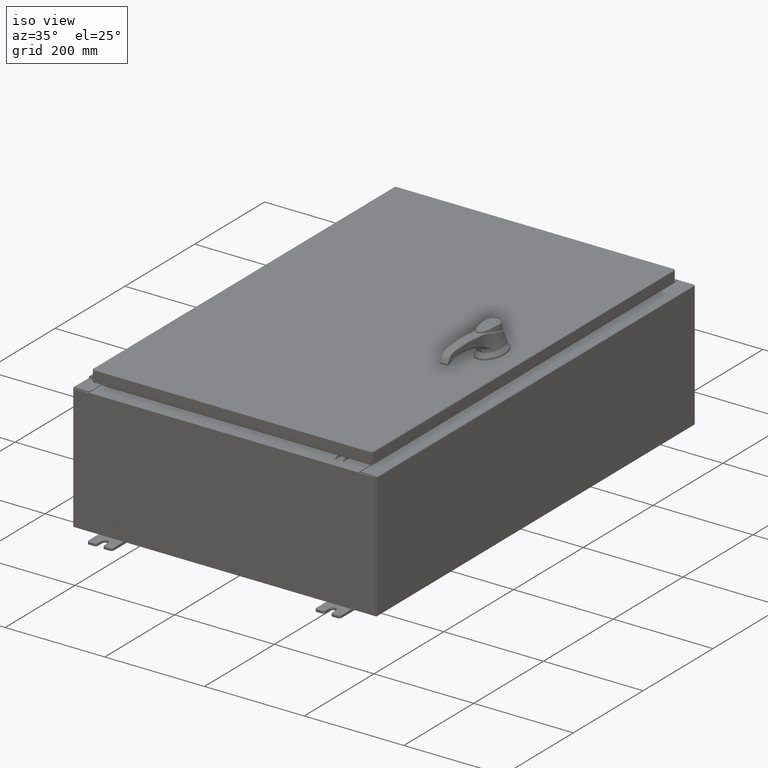
[diagram: clean part render]
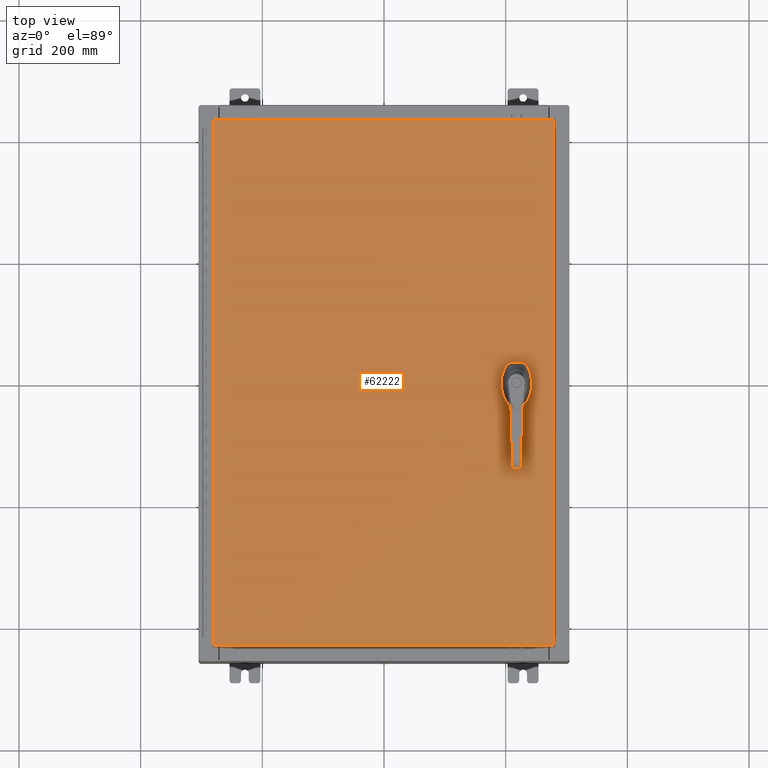
[diagram: tour spotlight — one face highlighted and labeled with its STEP entity id]
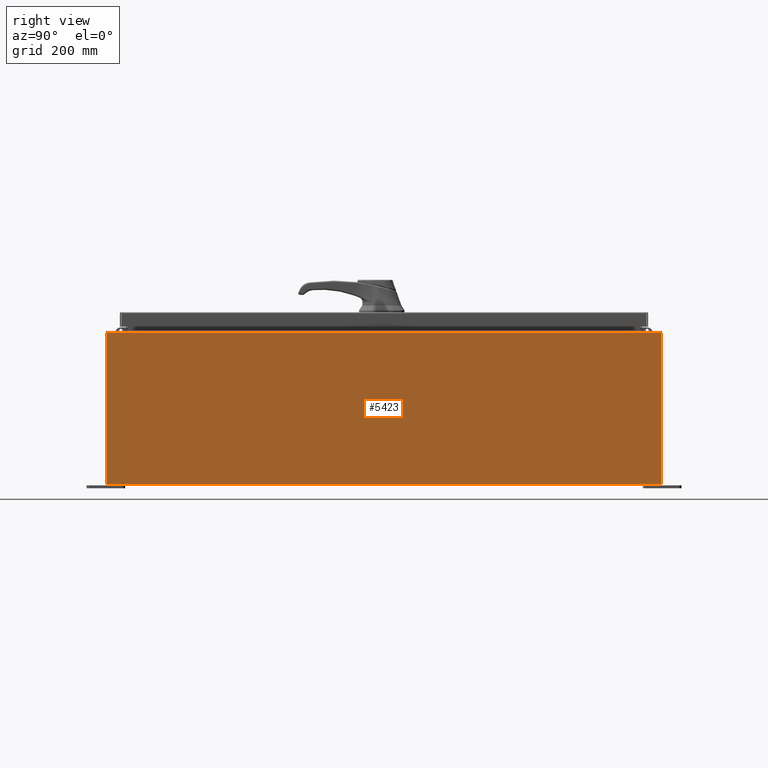
[diagram: tour spotlight — one face highlighted and labeled with its STEP entity id]
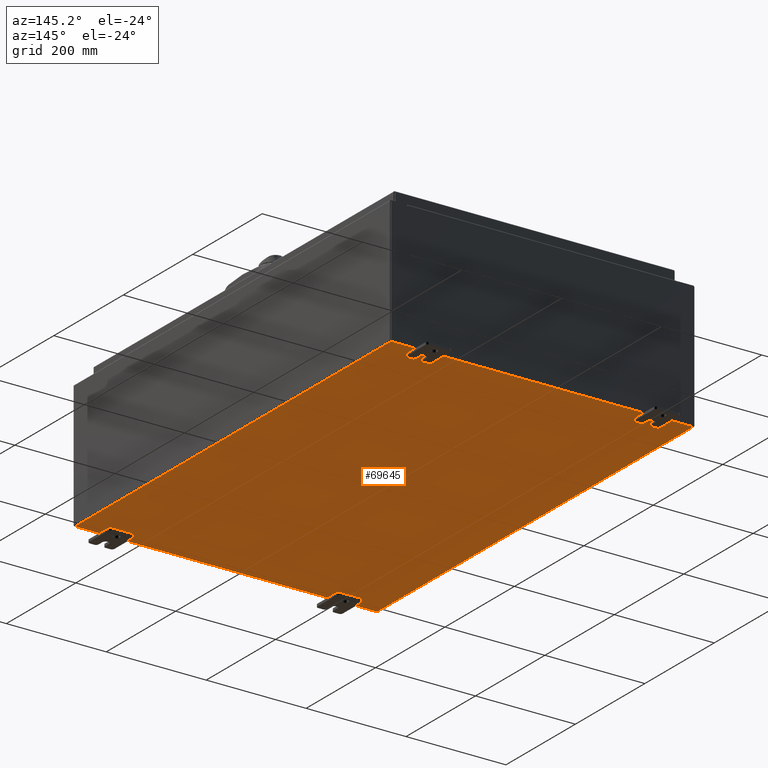
[diagram: tour spotlight — one face highlighted and labeled with its STEP entity id]
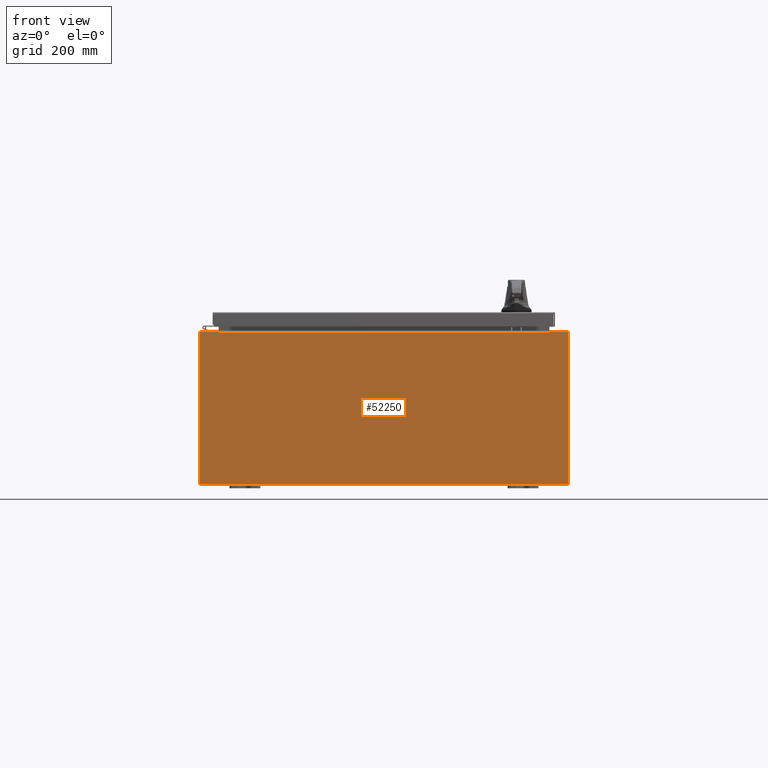
[diagram: tour spotlight — one face highlighted and labeled with its STEP entity id]
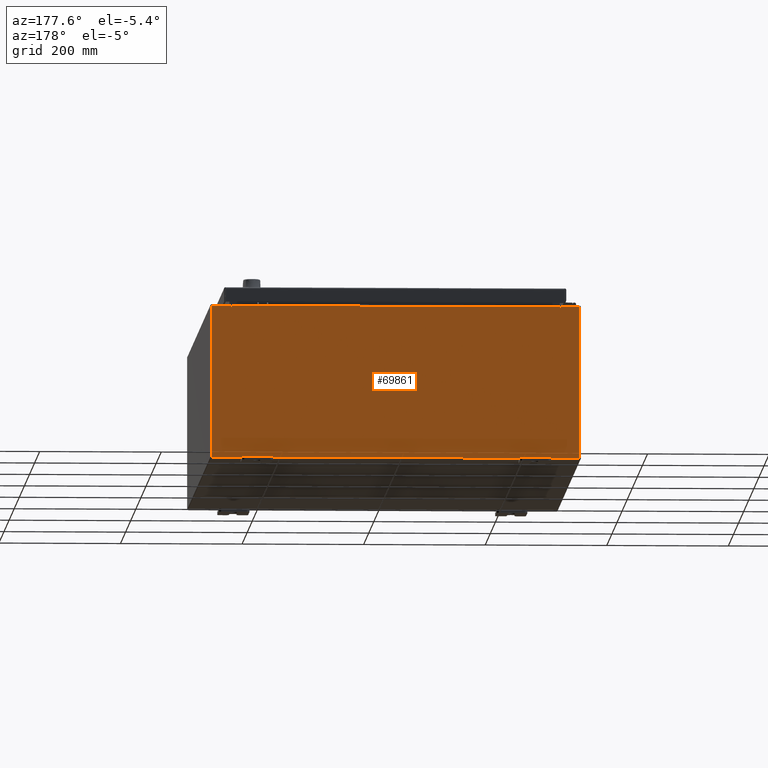
[diagram: tour spotlight — one face highlighted and labeled with its STEP entity id]
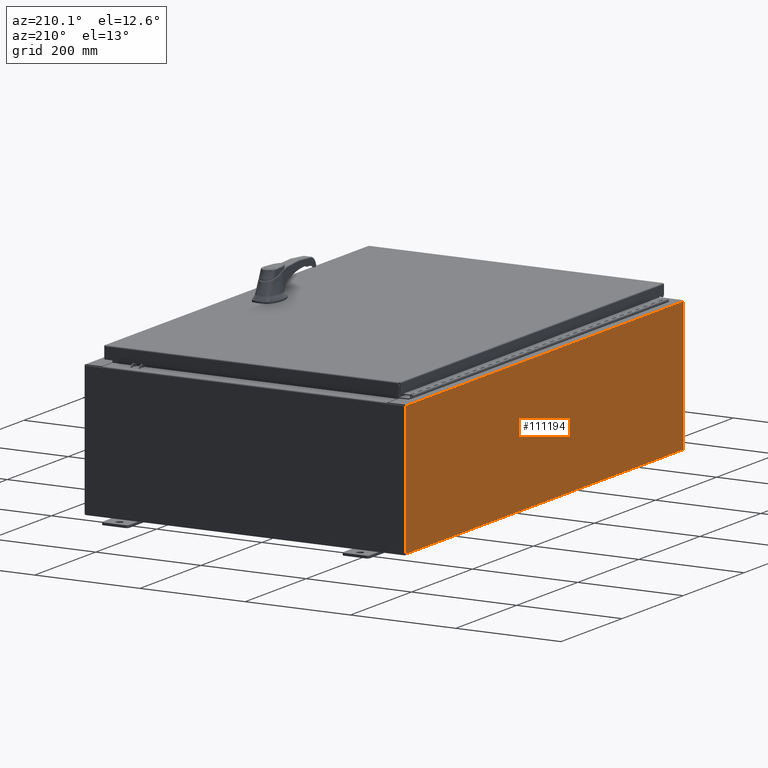
[diagram: tour spotlight — one face highlighted and labeled with its STEP entity id]
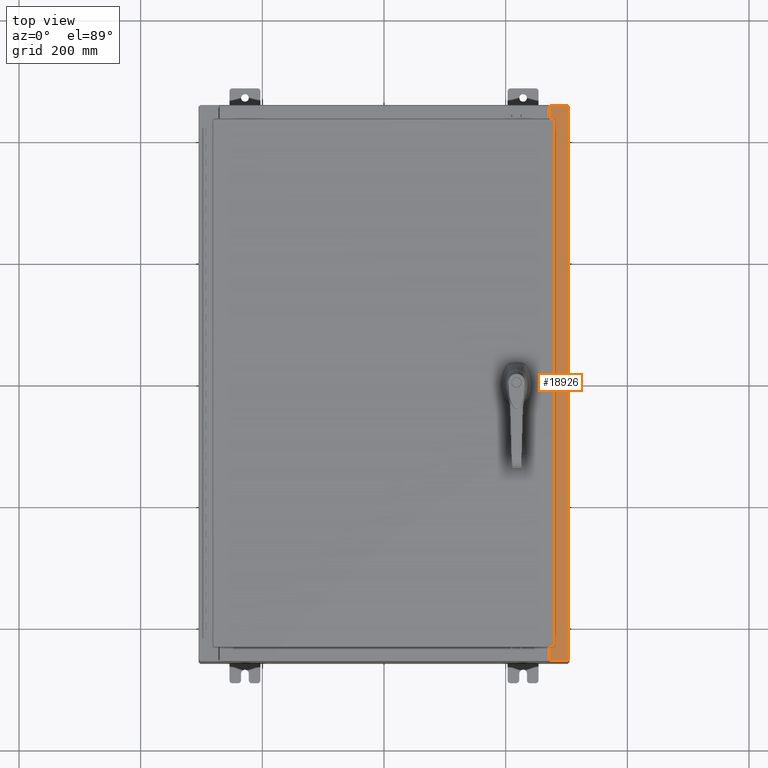
[diagram: tour spotlight — one face highlighted and labeled with its STEP entity id]
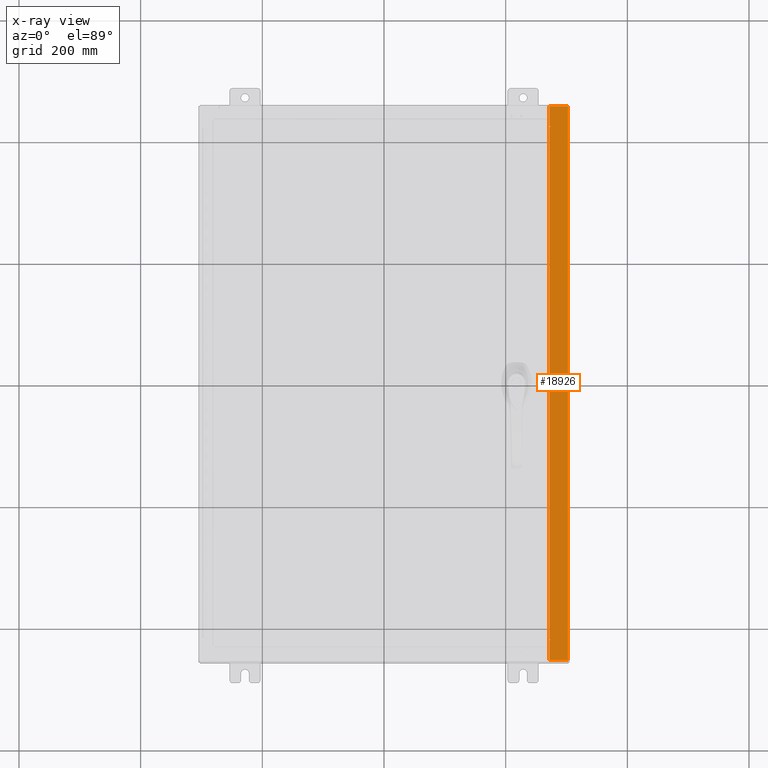
[diagram: x-ray of the same camera — body ghosted, this tour face saturated]
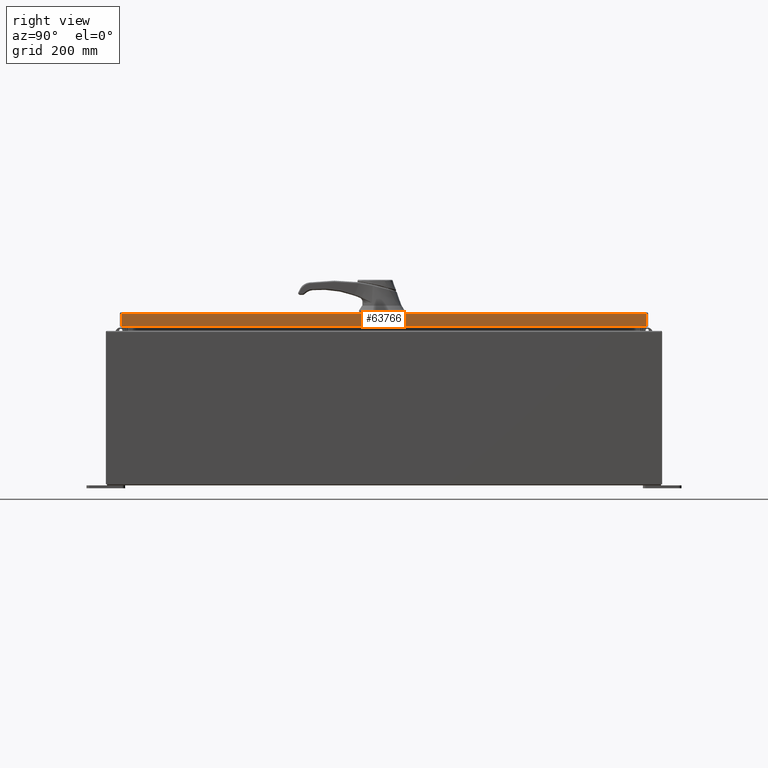
[diagram: tour spotlight — one face highlighted and labeled with its STEP entity id]
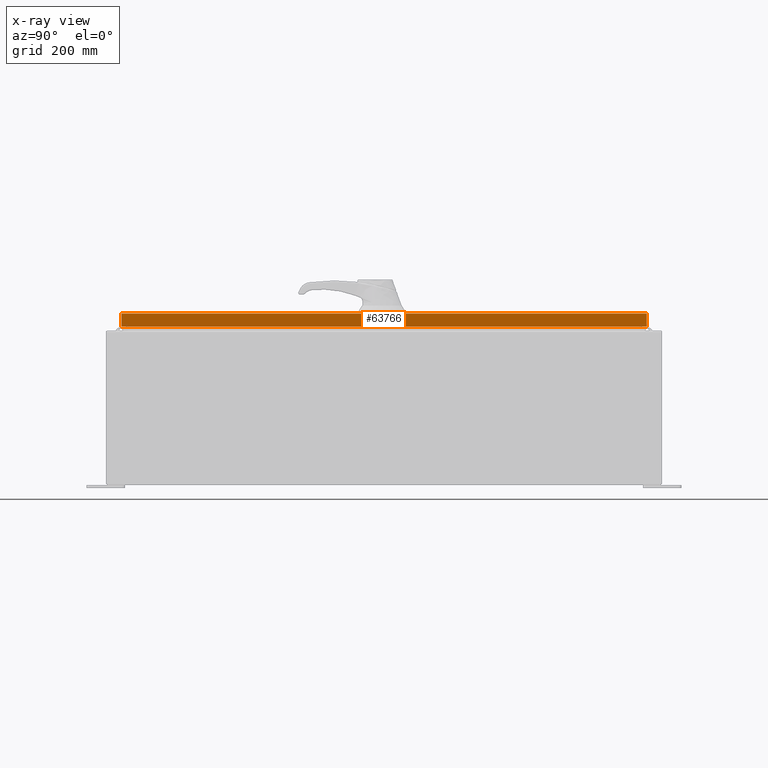
[diagram: x-ray of the same camera — body ghosted, this tour face saturated]
A machine part: a face-by-face anatomy tour. The part has 2770 B-rep faces; the first image is the clean iso view, then the 8 largest visible faces are spotlighted one at a time (largest first), each with its STEP entity span.

Face 1 — top view, entity #62222. In plain terms, the highlighted planar face has unit normal (0, 0, -1).
Definition (entity closure, byte-faithful):
#11 = EDGE_CURVE ( 'NONE', #7998, #93115, #110908, .T. ) ;
#351 = EDGE_CURVE ( 'NONE', #122092, #117305, #43129, .T. ) ;
#975 = CARTESIAN_POINT ( 'NONE',  ( 8.175000000000070000, -0.2002273707563079800, 0.0000000000000000000 ) ) ;
#3001 = CARTESIAN_POINT ( 'NONE',  ( 8.778227370756305000, -0.4029999999999252000, 0.0000000000000000000 ) ) ;
#3919 = DIRECTION ( 'NONE',  ( -1.000000000000000000, 0.0000000000000000000, -0.0000000000000000000 ) ) ;
#7465 = CIRCLE ( 'NONE', #8521, 0.4499999999999156900 ) ;
#7642 = EDGE_CURVE ( 'NONE', #115128, #91532, #14307, .T. ) ;
#7685 = CIRCLE ( 'NONE', #31476, 0.4499999999999156900 ) ;
#7998 = VERTEX_POINT ( 'NONE', #32029 ) ;
#8025 = CARTESIAN_POINT ( 'NONE',  ( -10.99030000000000000, -17.00629999999999600, -2.048885995248197400E-016 ) ) ;
#8521 = AXIS2_PLACEMENT_3D ( 'NONE', #36476, #102349, #45942 ) ;
#8564 = DIRECTION ( 'NONE',  ( -0.0000000000000000000, 0.0000000000000000000, 1.000000000000000000 ) ) ;
#11053 = VERTEX_POINT ( 'NONE', #23682 ) ;
#11772 = DIRECTION ( 'NONE',  ( 0.0000000000000000000, -1.000000000000000000, 0.0000000000000000000 ) ) ;
#12650 = CARTESIAN_POINT ( 'NONE',  ( 8.377772629243686700, -0.4029999999999252000, 0.0000000000000000000 ) ) ;
#14297 = EDGE_CURVE ( 'NONE', #35164, #35929, #7465, .T. ) ;
#14307 = LINE ( 'NONE', #30699, #61341 ) ;
#15648 = ORIENTED_EDGE ( 'NONE', *, *, #54053, .T. ) ;
#16218 = CARTESIAN_POINT ( 'NONE',  ( 8.980999999999921700, 2.450686610769031800E-014, 0.0000000000000000000 ) ) ;
#16937 = FACE_BOUND ( 'NONE', #95729, .T. ) ;
#17223 = LINE ( 'NONE', #16218, #64242 ) ;
#17722 = EDGE_LOOP ( 'NONE', ( #84434, #110375 ) ) ;
#19656 = LINE ( 'NONE', #26519, #116760 ) ;
#19740 = LINE ( 'NONE', #86904, #116836 ) ;
#20950 = EDGE_CURVE ( 'NONE', #24269, #122092, #44202, .T. ) ;
#22829 = FACE_BOUND ( 'NONE', #17722, .T. ) ;
#23682 = CARTESIAN_POINT ( 'NONE',  ( 8.980999999999921700, 0.2002273707563080300, 0.0000000000000000000 ) ) ;
#24269 = VERTEX_POINT ( 'NONE', #98482 ) ;
#24667 = DIRECTION ( 'NONE',  ( -0.0000000000000000000, 0.0000000000000000000, 1.000000000000000000 ) ) ;
#26009 = EDGE_CURVE ( 'NONE', #93115, #7998, #105433, .T. ) ;
#26519 = CARTESIAN_POINT ( 'NONE',  ( -10.99030000000000000, -17.00629999999999600, -2.048885995248197400E-016 ) ) ;
#30582 = DIRECTION ( 'NONE',  ( 0.0000000000000000000, -1.000000000000000000, 0.0000000000000000000 ) ) ;
#30699 = CARTESIAN_POINT ( 'NONE',  ( 8.175000000000070000, 0.0000000000000000000, 0.0000000000000000000 ) ) ;
#30906 = AXIS2_PLACEMENT_3D ( 'NONE', #97737, #60205, #3919 ) ;
#31067 = DIRECTION ( 'NONE',  ( -0.0000000000000000000, 0.0000000000000000000, 1.000000000000000000 ) ) ;
#31476 = AXIS2_PLACEMENT_3D ( 'NONE', #80979, #24667, #90502 ) ;
#31874 = ORIENTED_EDGE ( 'NONE', *, *, #100029, .T. ) ;
#31938 = CIRCLE ( 'NONE', #62597, 0.4499999999999156900 ) ;
#32029 = CARTESIAN_POINT ( 'NONE',  ( 8.749499999999997600, -1.338000000000000100, 0.0000000000000000000 ) ) ;
#33546 = AXIS2_PLACEMENT_3D ( 'NONE', #63474, #63059, #62660 ) ;
#35164 = VERTEX_POINT ( 'NONE', #3001 ) ;
#35929 = VERTEX_POINT ( 'NONE', #39808 ) ;
#36093 = CARTESIAN_POINT ( 'NONE',  ( 0.0000000000000000000, -0.4029999999999252000, 0.0000000000000000000 ) ) ;
#36476 = CARTESIAN_POINT ( 'NONE',  ( 8.577999999999995900, 0.0000000000000000000, 0.0000000000000000000 ) ) ;
#37852 = CARTESIAN_POINT ( 'NONE',  ( 8.577999999999995900, 0.0000000000000000000, 0.0000000000000000000 ) ) ;
#39778 = ORIENTED_EDGE ( 'NONE', *, *, #103309, .F. ) ;
#39808 = CARTESIAN_POINT ( 'NONE',  ( 8.980999999999921700, -0.2002273707563079800, 0.0000000000000000000 ) ) ;
#39982 = CARTESIAN_POINT ( 'NONE',  ( 10.99029999999999800, 17.00630000000000700, -2.048885995248197400E-016 ) ) ;
#40190 = CARTESIAN_POINT ( 'NONE',  ( 0.0000000000000000000, 0.4029999999999252000, 0.0000000000000000000 ) ) ;
#41830 = EDGE_CURVE ( 'NONE', #88134, #115128, #97332, .T. ) ;
#43129 = LINE ( 'NONE', #83926, #112325 ) ;
#44202 = LINE ( 'NONE', #60151, #91327 ) ;
#45532 = DIRECTION ( 'NONE',  ( 1.000000000000000000, 0.0000000000000000000, 0.0000000000000000000 ) ) ;
#45942 = DIRECTION ( 'NONE',  ( 1.000000000000000000, 0.0000000000000000000, 0.0000000000000000000 ) ) ;
#47156 = LINE ( 'NONE', #36093, #69231 ) ;
#47296 = DIRECTION ( 'NONE',  ( 1.000000000000000000, 0.0000000000000000000, 0.0000000000000000000 ) ) ;
#47751 = EDGE_CURVE ( 'NONE', #11053, #35929, #17223, .T. ) ;
#48137 = CARTESIAN_POINT ( 'NONE',  ( 8.377772629243686700, 0.4029999999999252000, 0.0000000000000000000 ) ) ;
#48306 = VERTEX_POINT ( 'NONE', #8025 ) ;
#50773 = PLANE ( 'NONE',  #30906 ) ;
#54053 = EDGE_CURVE ( 'NONE', #48306, #24269, #19656, .T. ) ;
#54819 = ORIENTED_EDGE ( 'NONE', *, *, #41830, .F. ) ;
#55661 = ORIENTED_EDGE ( 'NONE', *, *, #14297, .F. ) ;
#60151 = CARTESIAN_POINT ( 'NONE',  ( 10.99029999999999600, -17.00629999999999200, -2.048885995248197400E-016 ) ) ;
#60205 = DIRECTION ( 'NONE',  ( 0.0000000000000000000, 0.0000000000000000000, -1.000000000000000000 ) ) ;
#61006 = FACE_OUTER_BOUND ( 'NONE', #94578, .T. ) ;
#61341 = VECTOR ( 'NONE', #11772, 39.37007874015748100 ) ;
#62222 = ADVANCED_FACE ( 'NONE', ( #22829, #61006, #16937 ), #50773, .F. ) ;
#62597 = AXIS2_PLACEMENT_3D ( 'NONE', #64872, #8564, #74339 ) ;
#62660 = DIRECTION ( 'NONE',  ( 1.000000000000000000, 0.0000000000000000000, 0.0000000000000000000 ) ) ;
#63059 = DIRECTION ( 'NONE',  ( -0.0000000000000000000, 0.0000000000000000000, 1.000000000000000000 ) ) ;
#63474 = CARTESIAN_POINT ( 'NONE',  ( 8.577999999999995900, -1.338000000000000100, 0.0000000000000000000 ) ) ;
#64242 = VECTOR ( 'NONE', #82001, 39.37007874015748100 ) ;
#64718 = EDGE_CURVE ( 'NONE', #70136, #88134, #101907, .T. ) ;
#64872 = CARTESIAN_POINT ( 'NONE',  ( 8.577999999999995900, 0.0000000000000000000, 0.0000000000000000000 ) ) ;
#68701 = ORIENTED_EDGE ( 'NONE', *, *, #64718, .F. ) ;
#69076 = AXIS2_PLACEMENT_3D ( 'NONE', #87411, #31067, #96888 ) ;
#69231 = VECTOR ( 'NONE', #45532, 39.37007874015748100 ) ;
#69751 = CARTESIAN_POINT ( 'NONE',  ( -10.99030000000000500, 17.00630000000000700, -3.483106191921935600E-015 ) ) ;
#70007 = AXIS2_PLACEMENT_3D ( 'NONE', #37852, #103705, #47296 ) ;
#70136 = VERTEX_POINT ( 'NONE', #88296 ) ;
#72170 = ORIENTED_EDGE ( 'NONE', *, *, #20950, .T. ) ;
#73876 = VECTOR ( 'NONE', #96595, 39.37007874015748100 ) ;
#74339 = DIRECTION ( 'NONE',  ( 1.000000000000000000, 0.0000000000000000000, 0.0000000000000000000 ) ) ;
#74851 = ORIENTED_EDGE ( 'NONE', *, *, #7642, .F. ) ;
#77212 = ORIENTED_EDGE ( 'NONE', *, *, #86223, .F. ) ;
#80979 = CARTESIAN_POINT ( 'NONE',  ( 8.577999999999995900, 0.0000000000000000000, 0.0000000000000000000 ) ) ;
#82001 = DIRECTION ( 'NONE',  ( 2.728745808672812900E-015, -1.000000000000000000, 0.0000000000000000000 ) ) ;
#82813 = CARTESIAN_POINT ( 'NONE',  ( 8.175000000000070000, 0.2002273707563079800, 0.0000000000000000000 ) ) ;
#83926 = CARTESIAN_POINT ( 'NONE',  ( 10.99029999999999800, 17.00630000000000700, -2.048885995248197400E-016 ) ) ;
#84434 = ORIENTED_EDGE ( 'NONE', *, *, #11, .F. ) ;
#86223 = EDGE_CURVE ( 'NONE', #91532, #110894, #7685, .T. ) ;
#86904 = CARTESIAN_POINT ( 'NONE',  ( -10.99030000000000500, 17.00630000000000700, -3.483106191921935600E-015 ) ) ;
#87411 = CARTESIAN_POINT ( 'NONE',  ( 8.577999999999995900, -1.338000000000000100, 0.0000000000000000000 ) ) ;
#88134 = VERTEX_POINT ( 'NONE', #48137 ) ;
#88296 = CARTESIAN_POINT ( 'NONE',  ( 8.778227370756305000, 0.4029999999999252000, 0.0000000000000000000 ) ) ;
#88862 = CARTESIAN_POINT ( 'NONE',  ( 8.406499999999994100, -1.338000000000000100, 0.0000000000000000000 ) ) ;
#90502 = DIRECTION ( 'NONE',  ( 1.000000000000000000, 0.0000000000000000000, 0.0000000000000000000 ) ) ;
#91327 = VECTOR ( 'NONE', #97681, 39.37007874015748100 ) ;
#91532 = VERTEX_POINT ( 'NONE', #975 ) ;
#92310 = DIRECTION ( 'NONE',  ( 1.000000000000000000, -0.0000000000000000000, -0.0000000000000000000 ) ) ;
#93115 = VERTEX_POINT ( 'NONE', #88862 ) ;
#93352 = EDGE_CURVE ( 'NONE', #11053, #70136, #31938, .T. ) ;
#94578 = EDGE_LOOP ( 'NONE', ( #15648, #72170, #114957, #31874 ) ) ;
#95729 = EDGE_LOOP ( 'NONE', ( #115890, #55661, #39778, #77212, #74851, #54819, #68701, #103467 ) ) ;
#96595 = DIRECTION ( 'NONE',  ( -1.000000000000000000, 0.0000000000000000000, 0.0000000000000000000 ) ) ;
#96888 = DIRECTION ( 'NONE',  ( 1.000000000000000000, 0.0000000000000000000, 0.0000000000000000000 ) ) ;
#97332 = CIRCLE ( 'NONE', #70007, 0.4499999999999156900 ) ;
#97681 = DIRECTION ( 'NONE',  ( 0.0000000000000000000, 1.000000000000000000, 0.0000000000000000000 ) ) ;
#97737 = CARTESIAN_POINT ( 'NONE',  ( 0.0000000000000000000, 0.0000000000000000000, 0.0000000000000000000 ) ) ;
#98482 = CARTESIAN_POINT ( 'NONE',  ( 10.99029999999999600, -17.00629999999999200, -2.048885995248197400E-016 ) ) ;
#100029 = EDGE_CURVE ( 'NONE', #117305, #48306, #19740, .T. ) ;
#101907 = LINE ( 'NONE', #40190, #73876 ) ;
#102349 = DIRECTION ( 'NONE',  ( -0.0000000000000000000, 0.0000000000000000000, 1.000000000000000000 ) ) ;
#103309 = EDGE_CURVE ( 'NONE', #110894, #35164, #47156, .T. ) ;
#103467 = ORIENTED_EDGE ( 'NONE', *, *, #93352, .F. ) ;
#103705 = DIRECTION ( 'NONE',  ( -0.0000000000000000000, 0.0000000000000000000, 1.000000000000000000 ) ) ;
#105433 = CIRCLE ( 'NONE', #69076, 0.1715000000000011500 ) ;
#107125 = DIRECTION ( 'NONE',  ( -1.000000000000000000, -0.0000000000000000000, -0.0000000000000000000 ) ) ;
#110375 = ORIENTED_EDGE ( 'NONE', *, *, #26009, .F. ) ;
#110894 = VERTEX_POINT ( 'NONE', #12650 ) ;
#110908 = CIRCLE ( 'NONE', #33546, 0.1715000000000011500 ) ;
#112325 = VECTOR ( 'NONE', #107125, 39.37007874015748100 ) ;
#114957 = ORIENTED_EDGE ( 'NONE', *, *, #351, .T. ) ;
#115128 = VERTEX_POINT ( 'NONE', #82813 ) ;
#115890 = ORIENTED_EDGE ( 'NONE', *, *, #47751, .T. ) ;
#116760 = VECTOR ( 'NONE', #92310, 39.37007874015748100 ) ;
#116836 = VECTOR ( 'NONE', #30582, 39.37007874015748100 ) ;
#117305 = VERTEX_POINT ( 'NONE', #69751 ) ;
#122092 = VERTEX_POINT ( 'NONE', #39982 ) ;

Face 2 — right view, entity #5423. In plain terms, the highlighted planar face has unit normal (-1, 0, 0).
Definition (entity closure, byte-faithful):
#865 = VERTEX_POINT ( 'NONE', #77056 ) ;
#4869 = CARTESIAN_POINT ( 'NONE',  ( 12.00000000000000200, -17.92530000000000000, 0.01299999999999984700 ) ) ;
#5423 = ADVANCED_FACE ( 'NONE', ( #70303 ), #37482, .F. ) ;
#8448 = CARTESIAN_POINT ( 'NONE',  ( 12.00000000000003700, 17.92529999999999600, 9.837599999999993000 ) ) ;
#24952 = CARTESIAN_POINT ( 'NONE',  ( 12.00000000000000200, 17.92529999999999600, 0.01300000000000203200 ) ) ;
#26839 = DIRECTION ( 'NONE',  ( 3.523082860860887800E-015, 0.0000000000000000000, 1.000000000000000000 ) ) ;
#27150 = DIRECTION ( 'NONE',  ( -1.000000000000000000, 0.0000000000000000000, 3.523082860860887800E-015 ) ) ;
#27614 = LINE ( 'NONE', #88771, #49642 ) ;
#27630 = CARTESIAN_POINT ( 'NONE',  ( 12.00000000000000200, 0.0000000000000000000, -4.253780798634223500E-014 ) ) ;
#29616 = VERTEX_POINT ( 'NONE', #24952 ) ;
#30022 = DIRECTION ( 'NONE',  ( -3.523082860860888200E-015, -2.201926788038054900E-016, -1.000000000000000000 ) ) ;
#36073 = EDGE_CURVE ( 'NONE', #29616, #89354, #27614, .T. ) ;
#36134 = EDGE_CURVE ( 'NONE', #29616, #58224, #118854, .T. ) ;
#37482 = PLANE ( 'NONE',  #51218 ) ;
#38695 = ORIENTED_EDGE ( 'NONE', *, *, #36073, .T. ) ;
#40381 = EDGE_LOOP ( 'NONE', ( #48664, #46992, #87189, #38695 ) ) ;
#46689 = VECTOR ( 'NONE', #61155, 39.37007874015748100 ) ;
#46992 = ORIENTED_EDGE ( 'NONE', *, *, #77595, .T. ) ;
#48664 = ORIENTED_EDGE ( 'NONE', *, *, #100328, .T. ) ;
#49642 = VECTOR ( 'NONE', #98253, 39.37007874015748100 ) ;
#51218 = AXIS2_PLACEMENT_3D ( 'NONE', #27630, #27150, #26839 ) ;
#54985 = LINE ( 'NONE', #101102, #57913 ) ;
#57913 = VECTOR ( 'NONE', #72670, 39.37007874015748100 ) ;
#58224 = VERTEX_POINT ( 'NONE', #91887 ) ;
#58722 = CARTESIAN_POINT ( 'NONE',  ( 12.00000000000000200, -17.92530000000000400, -3.859078816098037700E-014 ) ) ;
#61155 = DIRECTION ( 'NONE',  ( -2.147696684564447600E-031, -1.000000000000000000, -6.096072018129156600E-017 ) ) ;
#70303 = FACE_OUTER_BOUND ( 'NONE', #40381, .T. ) ;
#72670 = DIRECTION ( 'NONE',  ( -0.0000000000000000000, -1.000000000000000000, -0.0000000000000000000 ) ) ;
#77056 = CARTESIAN_POINT ( 'NONE',  ( 12.00000000000003600, -17.92530000000000000, 9.837600000000000100 ) ) ;
#77595 = EDGE_CURVE ( 'NONE', #865, #58224, #118473, .T. ) ;
#87189 = ORIENTED_EDGE ( 'NONE', *, *, #36134, .F. ) ;
#88771 = CARTESIAN_POINT ( 'NONE',  ( 12.00000000000000200, 17.92529999999999600, -3.859078816098037700E-014 ) ) ;
#89354 = VERTEX_POINT ( 'NONE', #8448 ) ;
#90503 = VECTOR ( 'NONE', #30022, 39.37007874015748100 ) ;
#91887 = CARTESIAN_POINT ( 'NONE',  ( 12.00000000000000200, -17.92530000000000400, 0.01299999999999946500 ) ) ;
#98253 = DIRECTION ( 'NONE',  ( 3.523082860860888200E-015, -2.201926788038055100E-016, 1.000000000000000000 ) ) ;
#100328 = EDGE_CURVE ( 'NONE', #89354, #865, #54985, .T. ) ;
#101102 = CARTESIAN_POINT ( 'NONE',  ( 12.00000000000003700, 17.92529999999999600, 9.837599999999993000 ) ) ;
#118473 = LINE ( 'NONE', #58722, #90503 ) ;
#118854 = LINE ( 'NONE', #4869, #46689 ) ;

Face 3 — auxiliary view, entity #69645. In plain terms, the highlighted planar face has unit normal (0, 0, -1).
Definition (entity closure, byte-faithful):
#2592 = VERTEX_POINT ( 'NONE', #51900 ) ;
#4387 = DIRECTION ( 'NONE',  ( -0.0000000000000000000, -1.000000000000000000, -8.208677865577646300E-017 ) ) ;
#11712 = EDGE_CURVE ( 'NONE', #2592, #12460, #107965, .T. ) ;
#12460 = VERTEX_POINT ( 'NONE', #105573 ) ;
#14605 = VECTOR ( 'NONE', #80847, 39.37007874015748100 ) ;
#20028 = VERTEX_POINT ( 'NONE', #38165 ) ;
#21944 = AXIS2_PLACEMENT_3D ( 'NONE', #72328, #34906, #100774 ) ;
#22349 = EDGE_CURVE ( 'NONE', #32561, #12460, #64585, .T. ) ;
#26170 = ORIENTED_EDGE ( 'NONE', *, *, #70187, .T. ) ;
#28639 = CARTESIAN_POINT ( 'NONE',  ( -12.00000000000000200, 17.92529999999999600, -0.07470000000000000300 ) ) ;
#28831 = CARTESIAN_POINT ( 'NONE',  ( 11.91230000000000000, 17.92529999999999600, -0.07469999999999738000 ) ) ;
#32473 = EDGE_CURVE ( 'NONE', #2592, #20028, #114933, .T. ) ;
#32561 = VERTEX_POINT ( 'NONE', #28831 ) ;
#34906 = DIRECTION ( 'NONE',  ( 0.0000000000000000000, 0.0000000000000000000, -1.000000000000000000 ) ) ;
#38039 = VECTOR ( 'NONE', #4387, 39.37007874015748100 ) ;
#38165 = CARTESIAN_POINT ( 'NONE',  ( 11.91229999999999100, -17.92530000000000400, -0.07470000000000000300 ) ) ;
#41677 = VECTOR ( 'NONE', #44038, 39.37007874015748100 ) ;
#44038 = DIRECTION ( 'NONE',  ( -0.0000000000000000000, 1.000000000000000000, -0.0000000000000000000 ) ) ;
#51900 = CARTESIAN_POINT ( 'NONE',  ( -11.91230000000000000, -17.92530000000000400, -0.07469999999999994700 ) ) ;
#54931 = ORIENTED_EDGE ( 'NONE', *, *, #22349, .F. ) ;
#55956 = CARTESIAN_POINT ( 'NONE',  ( -12.00000000000000200, -17.92530000000000400, -0.07470000000000000300 ) ) ;
#64585 = LINE ( 'NONE', #28639, #14605 ) ;
#69645 = ADVANCED_FACE ( 'NONE', ( #98516 ), #90886, .T. ) ;
#70168 = CARTESIAN_POINT ( 'NONE',  ( 11.91230000000000000, 17.92529999999999600, -0.07469999999999738000 ) ) ;
#70187 = EDGE_CURVE ( 'NONE', #32561, #20028, #110199, .T. ) ;
#72328 = CARTESIAN_POINT ( 'NONE',  ( 0.0000000000000000000, 0.0000000000000000000, -0.07470000000000000300 ) ) ;
#80847 = DIRECTION ( 'NONE',  ( -1.000000000000000000, -0.0000000000000000000, -0.0000000000000000000 ) ) ;
#84347 = DIRECTION ( 'NONE',  ( 1.000000000000000000, 0.0000000000000000000, 0.0000000000000000000 ) ) ;
#84999 = ORIENTED_EDGE ( 'NONE', *, *, #32473, .F. ) ;
#86955 = VECTOR ( 'NONE', #84347, 39.37007874015748100 ) ;
#87306 = EDGE_LOOP ( 'NONE', ( #84999, #117149, #54931, #26170 ) ) ;
#90886 = PLANE ( 'NONE',  #21944 ) ;
#98516 = FACE_OUTER_BOUND ( 'NONE', #87306, .T. ) ;
#100441 = CARTESIAN_POINT ( 'NONE',  ( -11.91230000000000000, -17.92530000000000400, -0.07469999999999994700 ) ) ;
#100774 = DIRECTION ( 'NONE',  ( -1.000000000000000000, 0.0000000000000000000, -0.0000000000000000000 ) ) ;
#105573 = CARTESIAN_POINT ( 'NONE',  ( -11.91230000000000000, 17.92529999999999600, -0.07470000000000000300 ) ) ;
#107965 = LINE ( 'NONE', #100441, #41677 ) ;
#110199 = LINE ( 'NONE', #70168, #38039 ) ;
#114933 = LINE ( 'NONE', #55956, #86955 ) ;
#117149 = ORIENTED_EDGE ( 'NONE', *, *, #11712, .T. ) ;

Face 4 — front view, entity #52250. In plain terms, the highlighted planar face has unit normal (-0, 1, -0).
Definition (entity closure, byte-faithful):
#675 = VECTOR ( 'NONE', #100497, 39.37007874015748100 ) ;
#1287 = DIRECTION ( 'NONE',  ( -0.0000000000000000000, 1.000000000000000000, -0.0000000000000000000 ) ) ;
#1516 = CARTESIAN_POINT ( 'NONE',  ( 10.67454999999979000, -0.0000000000000000000, -4.633366117301795800E-013 ) ) ;
#1665 = CARTESIAN_POINT ( 'NONE',  ( -11.92530000000000000, 0.0000000000000000000, 4.925300000000000000 ) ) ;
#5055 = VECTOR ( 'NONE', #121496, 39.37007874015748100 ) ;
#5769 = EDGE_CURVE ( 'NONE', #16431, #40520, #24669, .T. ) ;
#8227 = AXIS2_PLACEMENT_3D ( 'NONE', #57619, #1287, #67073 ) ;
#8415 = DIRECTION ( 'NONE',  ( -0.0000000000000000000, 1.000000000000000000, -0.0000000000000000000 ) ) ;
#9759 = VERTEX_POINT ( 'NONE', #120415 ) ;
#12990 = EDGE_CURVE ( 'NONE', #32348, #41528, #87135, .T. ) ;
#13553 = VERTEX_POINT ( 'NONE', #108723 ) ;
#16431 = VERTEX_POINT ( 'NONE', #53419 ) ;
#17101 = DIRECTION ( 'NONE',  ( 0.0000000000000000000, -0.0000000000000000000, -1.000000000000000000 ) ) ;
#20705 = LINE ( 'NONE', #115866, #98719 ) ;
#21846 = CARTESIAN_POINT ( 'NONE',  ( 10.67455000000000200, 0.0000000000000000000, 4.874950000000000100 ) ) ;
#22676 = ORIENTED_EDGE ( 'NONE', *, *, #23145, .T. ) ;
#22876 = CARTESIAN_POINT ( 'NONE',  ( 10.63720000000000400, 0.0000000000000000000, 0.0000000000000000000 ) ) ;
#23145 = EDGE_CURVE ( 'NONE', #120562, #59024, #120458, .T. ) ;
#23859 = ORIENTED_EDGE ( 'NONE', *, *, #64997, .T. ) ;
#24669 = LINE ( 'NONE', #87322, #121771 ) ;
#25369 = DIRECTION ( 'NONE',  ( -1.000000000000000000, -0.0000000000000000000, -0.0000000000000000000 ) ) ;
#25768 = CARTESIAN_POINT ( 'NONE',  ( 10.67455000000000200, 0.0000000000000000000, 4.925300000000000000 ) ) ;
#27620 = EDGE_CURVE ( 'NONE', #94510, #87606, #80069, .T. ) ;
#30277 = ORIENTED_EDGE ( 'NONE', *, *, #102376, .F. ) ;
#32348 = VERTEX_POINT ( 'NONE', #44479 ) ;
#32621 = CARTESIAN_POINT ( 'NONE',  ( 11.92530000000000000, 0.0000000000000000000, 4.925300000000000000 ) ) ;
#35551 = CARTESIAN_POINT ( 'NONE',  ( 0.0000000000000000000, 0.0000000000000000000, 0.0000000000000000000 ) ) ;
#36377 = CIRCLE ( 'NONE', #8227, 0.01867499999999949400 ) ;
#37816 = ORIENTED_EDGE ( 'NONE', *, *, #27620, .T. ) ;
#39544 = ORIENTED_EDGE ( 'NONE', *, *, #91324, .F. ) ;
#40153 = CARTESIAN_POINT ( 'NONE',  ( -11.92530000000000000, 0.0000000000000000000, -4.925300000000000000 ) ) ;
#40520 = VERTEX_POINT ( 'NONE', #63609 ) ;
#41528 = VERTEX_POINT ( 'NONE', #109104 ) ;
#42375 = EDGE_CURVE ( 'NONE', #16431, #32348, #114885, .T. ) ;
#44479 = CARTESIAN_POINT ( 'NONE',  ( -10.63720000000000400, -0.0000000000000000000, 4.874950000000000100 ) ) ;
#45956 = ORIENTED_EDGE ( 'NONE', *, *, #92787, .F. ) ;
#47720 = LINE ( 'NONE', #1516, #116923 ) ;
#50075 = EDGE_CURVE ( 'NONE', #59024, #81550, #50703, .T. ) ;
#50703 = LINE ( 'NONE', #100074, #675 ) ;
#51099 = VECTOR ( 'NONE', #55310, 39.37007874015748100 ) ;
#52250 = ADVANCED_FACE ( 'NONE', ( #81684 ), #110867, .F. ) ;
#53202 = LINE ( 'NONE', #22876, #56147 ) ;
#53309 = CARTESIAN_POINT ( 'NONE',  ( -11.92530000000000000, 0.0000000000000000000, -4.925300000000000000 ) ) ;
#53419 = CARTESIAN_POINT ( 'NONE',  ( -10.63720000000000400, -7.171100983368691200E-016, 4.912300000000000100 ) ) ;
#55310 = DIRECTION ( 'NONE',  ( 0.0000000000000000000, 0.0000000000000000000, 1.000000000000000000 ) ) ;
#56147 = VECTOR ( 'NONE', #79153, 39.37007874015748100 ) ;
#56200 = VECTOR ( 'NONE', #25369, 39.37007874015748100 ) ;
#57619 = CARTESIAN_POINT ( 'NONE',  ( 10.65587500000000200, 0.0000000000000000000, 4.874950000000000100 ) ) ;
#58810 = CARTESIAN_POINT ( 'NONE',  ( -10.67455000000000200, 0.0000000000000000000, 4.925300000000000000 ) ) ;
#59024 = VERTEX_POINT ( 'NONE', #85925 ) ;
#62004 = AXIS2_PLACEMENT_3D ( 'NONE', #64709, #8415, #74191 ) ;
#63609 = CARTESIAN_POINT ( 'NONE',  ( 10.63720000000000400, 0.0000000000000000000, 4.912300000000000100 ) ) ;
#63848 = ORIENTED_EDGE ( 'NONE', *, *, #42375, .F. ) ;
#64524 = ORIENTED_EDGE ( 'NONE', *, *, #96176, .F. ) ;
#64689 = CARTESIAN_POINT ( 'NONE',  ( -11.92530000000000000, 0.0000000000000000000, 4.925300000000000000 ) ) ;
#64709 = CARTESIAN_POINT ( 'NONE',  ( -10.65587500000000200, 0.0000000000000000000, 4.874950000000000100 ) ) ;
#64997 = EDGE_CURVE ( 'NONE', #13553, #120562, #81216, .T. ) ;
#66545 = EDGE_CURVE ( 'NONE', #87606, #13553, #20705, .T. ) ;
#67073 = DIRECTION ( 'NONE',  ( 0.0000000000000000000, 0.0000000000000000000, -1.000000000000000000 ) ) ;
#67310 = DIRECTION ( 'NONE',  ( -4.340572780400004900E-014, 0.0000000000000000000, -1.000000000000000000 ) ) ;
#67313 = DIRECTION ( 'NONE',  ( 0.0000000000000000000, 0.0000000000000000000, -1.000000000000000000 ) ) ;
#67460 = DIRECTION ( 'NONE',  ( -0.0000000000000000000, -0.0000000000000000000, 1.000000000000000000 ) ) ;
#67776 = VECTOR ( 'NONE', #102766, 39.37007874015748100 ) ;
#73163 = LINE ( 'NONE', #121107, #51099 ) ;
#73374 = DIRECTION ( 'NONE',  ( 0.0000000000000000000, -1.000000000000000000, 0.0000000000000000000 ) ) ;
#74191 = DIRECTION ( 'NONE',  ( 0.0000000000000000000, 0.0000000000000000000, -1.000000000000000000 ) ) ;
#74833 = ORIENTED_EDGE ( 'NONE', *, *, #66545, .T. ) ;
#74892 = EDGE_LOOP ( 'NONE', ( #39544, #98809, #63848, #85491, #30277, #45956, #64524, #37816, #74833, #23859, #22676, #81095 ) ) ;
#79153 = DIRECTION ( 'NONE',  ( 0.0000000000000000000, 0.0000000000000000000, 1.000000000000000000 ) ) ;
#80069 = LINE ( 'NONE', #64689, #5055 ) ;
#81095 = ORIENTED_EDGE ( 'NONE', *, *, #50075, .T. ) ;
#81216 = LINE ( 'NONE', #53309, #56200 ) ;
#81550 = VERTEX_POINT ( 'NONE', #58810 ) ;
#81684 = FACE_OUTER_BOUND ( 'NONE', #74892, .T. ) ;
#85491 = ORIENTED_EDGE ( 'NONE', *, *, #5769, .T. ) ;
#85925 = CARTESIAN_POINT ( 'NONE',  ( -11.92530000000000000, 0.0000000000000000000, 4.925300000000000000 ) ) ;
#87135 = CIRCLE ( 'NONE', #62004, 0.01867499999999949400 ) ;
#87322 = CARTESIAN_POINT ( 'NONE',  ( -10.63720000000000400, -7.171100983368691200E-016, 4.912300000000000100 ) ) ;
#87606 = VERTEX_POINT ( 'NONE', #32621 ) ;
#89561 = VECTOR ( 'NONE', #67460, 39.37007874015748100 ) ;
#91324 = EDGE_CURVE ( 'NONE', #41528, #81550, #73163, .T. ) ;
#92787 = EDGE_CURVE ( 'NONE', #93016, #9759, #36377, .T. ) ;
#93016 = VERTEX_POINT ( 'NONE', #21846 ) ;
#94510 = VERTEX_POINT ( 'NONE', #25768 ) ;
#96176 = EDGE_CURVE ( 'NONE', #94510, #93016, #47720, .T. ) ;
#96806 = DIRECTION ( 'NONE',  ( 1.000000000000000000, 0.0000000000000000000, 0.0000000000000000000 ) ) ;
#98719 = VECTOR ( 'NONE', #67313, 39.37007874015748100 ) ;
#98809 = ORIENTED_EDGE ( 'NONE', *, *, #12990, .F. ) ;
#100074 = CARTESIAN_POINT ( 'NONE',  ( -11.92530000000000000, 0.0000000000000000000, 4.925300000000000000 ) ) ;
#100497 = DIRECTION ( 'NONE',  ( 1.000000000000000000, 0.0000000000000000000, 0.0000000000000000000 ) ) ;
#102376 = EDGE_CURVE ( 'NONE', #9759, #40520, #53202, .T. ) ;
#102766 = DIRECTION ( 'NONE',  ( 0.0000000000000000000, 0.0000000000000000000, -1.000000000000000000 ) ) ;
#108723 = CARTESIAN_POINT ( 'NONE',  ( 11.92530000000000000, 0.0000000000000000000, -4.925300000000000000 ) ) ;
#109104 = CARTESIAN_POINT ( 'NONE',  ( -10.67455000000000200, 0.0000000000000000000, 4.874950000000000100 ) ) ;
#110867 = PLANE ( 'NONE',  #114677 ) ;
#111804 = CARTESIAN_POINT ( 'NONE',  ( -10.63720000000000400, -0.0000000000000000000, 0.0000000000000000000 ) ) ;
#114677 = AXIS2_PLACEMENT_3D ( 'NONE', #35551, #73374, #17101 ) ;
#114885 = LINE ( 'NONE', #111804, #67776 ) ;
#115866 = CARTESIAN_POINT ( 'NONE',  ( 11.92530000000000000, 0.0000000000000000000, 4.925300000000000000 ) ) ;
#116923 = VECTOR ( 'NONE', #67310, 39.37007874015748100 ) ;
#120415 = CARTESIAN_POINT ( 'NONE',  ( 10.63720000000000400, 0.0000000000000000000, 4.874950000000000100 ) ) ;
#120458 = LINE ( 'NONE', #1665, #89561 ) ;
#120562 = VERTEX_POINT ( 'NONE', #40153 ) ;
#121107 = CARTESIAN_POINT ( 'NONE',  ( -10.67455000000000200, -0.0000000000000000000, 0.0000000000000000000 ) ) ;
#121496 = DIRECTION ( 'NONE',  ( 1.000000000000000000, 0.0000000000000000000, 0.0000000000000000000 ) ) ;
#121771 = VECTOR ( 'NONE', #96806, 39.37007874015748100 ) ;

Face 5 — auxiliary view, entity #69861. In plain terms, the highlighted planar face has unit normal (0, -1, 0).
Definition (entity closure, byte-faithful):
#162 = EDGE_CURVE ( 'NONE', #12890, #19487, #1941, .T. ) ;
#1195 = ORIENTED_EDGE ( 'NONE', *, *, #162, .T. ) ;
#1587 = DIRECTION ( 'NONE',  ( 1.000000000000000000, 0.0000000000000000000, 0.0000000000000000000 ) ) ;
#1941 = LINE ( 'NONE', #53243, #99105 ) ;
#2742 = VECTOR ( 'NONE', #1587, 39.37007874015748100 ) ;
#2751 = FACE_OUTER_BOUND ( 'NONE', #44206, .T. ) ;
#2905 = VECTOR ( 'NONE', #113578, 39.37007874015748100 ) ;
#4231 = EDGE_CURVE ( 'NONE', #70086, #42340, #60130, .T. ) ;
#4345 = DIRECTION ( 'NONE',  ( 0.0000000000000000000, 0.0000000000000000000, -1.000000000000000000 ) ) ;
#5923 = DIRECTION ( 'NONE',  ( -1.000000000000000000, -0.0000000000000000000, -0.0000000000000000000 ) ) ;
#7267 = VECTOR ( 'NONE', #43889, 39.37007874015748100 ) ;
#8153 = CARTESIAN_POINT ( 'NONE',  ( 10.67455000000000200, 0.0000000000000000000, 4.925300000000000000 ) ) ;
#8642 = ORIENTED_EDGE ( 'NONE', *, *, #104023, .T. ) ;
#9773 = DIRECTION ( 'NONE',  ( 0.0000000000000000000, -1.000000000000000000, 0.0000000000000000000 ) ) ;
#11018 = CARTESIAN_POINT ( 'NONE',  ( -10.67455000000000200, 0.0000000000000000000, 4.874950000000000100 ) ) ;
#12066 = LINE ( 'NONE', #118803, #87118 ) ;
#12890 = VERTEX_POINT ( 'NONE', #44628 ) ;
#13644 = CIRCLE ( 'NONE', #58748, 0.01867499999999949400 ) ;
#14251 = ORIENTED_EDGE ( 'NONE', *, *, #55342, .T. ) ;
#15594 = DIRECTION ( 'NONE',  ( -0.0000000000000000000, -0.0000000000000000000, 1.000000000000000000 ) ) ;
#16155 = CARTESIAN_POINT ( 'NONE',  ( 10.63720000000000400, 0.0000000000000000000, 4.912300000000000100 ) ) ;
#17305 = VECTOR ( 'NONE', #82996, 39.37007874015748100 ) ;
#17331 = CARTESIAN_POINT ( 'NONE',  ( -10.65587500000000200, 0.0000000000000000000, 4.874950000000000100 ) ) ;
#19336 = CARTESIAN_POINT ( 'NONE',  ( 10.63720000000000400, 0.0000000000000000000, 0.0000000000000000000 ) ) ;
#19487 = VERTEX_POINT ( 'NONE', #91049 ) ;
#20612 = VERTEX_POINT ( 'NONE', #47063 ) ;
#22050 = EDGE_CURVE ( 'NONE', #110752, #19487, #54375, .T. ) ;
#23067 = ORIENTED_EDGE ( 'NONE', *, *, #115514, .T. ) ;
#26676 = CARTESIAN_POINT ( 'NONE',  ( -10.63720000000000400, -7.171100983368691200E-016, 4.912300000000000100 ) ) ;
#26790 = DIRECTION ( 'NONE',  ( 0.0000000000000000000, 0.0000000000000000000, -1.000000000000000000 ) ) ;
#27779 = LINE ( 'NONE', #57934, #2742 ) ;
#27992 = CARTESIAN_POINT ( 'NONE',  ( 10.67454999999979000, -0.0000000000000000000, -4.633366117301795800E-013 ) ) ;
#33454 = CARTESIAN_POINT ( 'NONE',  ( 10.67455000000000200, 0.0000000000000000000, 4.874950000000000100 ) ) ;
#33668 = VECTOR ( 'NONE', #104060, 39.37007874015748100 ) ;
#37444 = DIRECTION ( 'NONE',  ( -4.340572780400004900E-014, 0.0000000000000000000, -1.000000000000000000 ) ) ;
#38109 = AXIS2_PLACEMENT_3D ( 'NONE', #39448, #105343, #48927 ) ;
#39448 = CARTESIAN_POINT ( 'NONE',  ( 10.65587500000000200, 0.0000000000000000000, 4.874950000000000100 ) ) ;
#40224 = EDGE_CURVE ( 'NONE', #49354, #110752, #13644, .T. ) ;
#42278 = LINE ( 'NONE', #26676, #17305 ) ;
#42340 = VERTEX_POINT ( 'NONE', #64455 ) ;
#43381 = DIRECTION ( 'NONE',  ( 1.000000000000000000, 0.0000000000000000000, 0.0000000000000000000 ) ) ;
#43781 = VERTEX_POINT ( 'NONE', #33454 ) ;
#43889 = DIRECTION ( 'NONE',  ( 0.0000000000000000000, 0.0000000000000000000, 1.000000000000000000 ) ) ;
#44206 = EDGE_LOOP ( 'NONE', ( #52010, #66418, #96432, #71853, #94405, #91361, #100516, #23067, #8642, #63760, #14251, #1195 ) ) ;
#44628 = CARTESIAN_POINT ( 'NONE',  ( -11.92530000000000000, 0.0000000000000000000, 4.925300000000000000 ) ) ;
#47063 = CARTESIAN_POINT ( 'NONE',  ( -10.63720000000000400, -7.171100983368691200E-016, 4.912300000000000100 ) ) ;
#47740 = CARTESIAN_POINT ( 'NONE',  ( 11.92530000000000000, 0.0000000000000000000, 4.925300000000000000 ) ) ;
#47969 = VECTOR ( 'NONE', #4345, 39.37007874015748100 ) ;
#48927 = DIRECTION ( 'NONE',  ( 0.0000000000000000000, 0.0000000000000000000, -1.000000000000000000 ) ) ;
#49354 = VERTEX_POINT ( 'NONE', #51610 ) ;
#50915 = LINE ( 'NONE', #117057, #47969 ) ;
#51090 = CARTESIAN_POINT ( 'NONE',  ( 11.92530000000000000, 0.0000000000000000000, 4.925300000000000000 ) ) ;
#51610 = CARTESIAN_POINT ( 'NONE',  ( -10.63720000000000400, -0.0000000000000000000, 4.874950000000000100 ) ) ;
#52010 = ORIENTED_EDGE ( 'NONE', *, *, #22050, .F. ) ;
#52795 = EDGE_CURVE ( 'NONE', #66327, #43781, #96350, .T. ) ;
#53243 = CARTESIAN_POINT ( 'NONE',  ( -11.92530000000000000, 0.0000000000000000000, 4.925300000000000000 ) ) ;
#54375 = LINE ( 'NONE', #100265, #7267 ) ;
#55342 = EDGE_CURVE ( 'NONE', #42340, #12890, #12066, .T. ) ;
#56681 = PLANE ( 'NONE',  #72339 ) ;
#57219 = VECTOR ( 'NONE', #5923, 39.37007874015748100 ) ;
#57934 = CARTESIAN_POINT ( 'NONE',  ( -11.92530000000000000, 0.0000000000000000000, 4.925300000000000000 ) ) ;
#58748 = AXIS2_PLACEMENT_3D ( 'NONE', #17331, #83103, #26790 ) ;
#59069 = CARTESIAN_POINT ( 'NONE',  ( 11.92530000000000000, 0.0000000000000000000, -4.925300000000000000 ) ) ;
#60130 = LINE ( 'NONE', #122095, #57219 ) ;
#61601 = LINE ( 'NONE', #19336, #33668 ) ;
#63760 = ORIENTED_EDGE ( 'NONE', *, *, #4231, .T. ) ;
#64455 = CARTESIAN_POINT ( 'NONE',  ( -11.92530000000000000, 0.0000000000000000000, -4.925300000000000000 ) ) ;
#65410 = VERTEX_POINT ( 'NONE', #16155 ) ;
#66093 = CARTESIAN_POINT ( 'NONE',  ( 0.0000000000000000000, 0.0000000000000000000, 0.0000000000000000000 ) ) ;
#66327 = VERTEX_POINT ( 'NONE', #8153 ) ;
#66418 = ORIENTED_EDGE ( 'NONE', *, *, #40224, .F. ) ;
#69861 = ADVANCED_FACE ( 'NONE', ( #2751 ), #56681, .F. ) ;
#70086 = VERTEX_POINT ( 'NONE', #59069 ) ;
#70873 = VERTEX_POINT ( 'NONE', #51090 ) ;
#71282 = VECTOR ( 'NONE', #37444, 39.37007874015748100 ) ;
#71853 = ORIENTED_EDGE ( 'NONE', *, *, #116934, .T. ) ;
#72339 = AXIS2_PLACEMENT_3D ( 'NONE', #66093, #9773, #75565 ) ;
#72738 = CARTESIAN_POINT ( 'NONE',  ( 10.63720000000000400, 0.0000000000000000000, 4.874950000000000100 ) ) ;
#73086 = EDGE_CURVE ( 'NONE', #20612, #49354, #50915, .T. ) ;
#75565 = DIRECTION ( 'NONE',  ( 0.0000000000000000000, -0.0000000000000000000, -1.000000000000000000 ) ) ;
#77948 = LINE ( 'NONE', #47740, #2905 ) ;
#82996 = DIRECTION ( 'NONE',  ( 1.000000000000000000, 0.0000000000000000000, 0.0000000000000000000 ) ) ;
#83103 = DIRECTION ( 'NONE',  ( -0.0000000000000000000, 1.000000000000000000, -0.0000000000000000000 ) ) ;
#87118 = VECTOR ( 'NONE', #15594, 39.37007874015748100 ) ;
#91049 = CARTESIAN_POINT ( 'NONE',  ( -10.67455000000000200, 0.0000000000000000000, 4.925300000000000000 ) ) ;
#91361 = ORIENTED_EDGE ( 'NONE', *, *, #91962, .F. ) ;
#91962 = EDGE_CURVE ( 'NONE', #43781, #121470, #114521, .T. ) ;
#94405 = ORIENTED_EDGE ( 'NONE', *, *, #115421, .F. ) ;
#96350 = LINE ( 'NONE', #27992, #71282 ) ;
#96432 = ORIENTED_EDGE ( 'NONE', *, *, #73086, .F. ) ;
#99105 = VECTOR ( 'NONE', #43381, 39.37007874015748100 ) ;
#100265 = CARTESIAN_POINT ( 'NONE',  ( -10.67455000000000200, -0.0000000000000000000, 0.0000000000000000000 ) ) ;
#100516 = ORIENTED_EDGE ( 'NONE', *, *, #52795, .F. ) ;
#104023 = EDGE_CURVE ( 'NONE', #70873, #70086, #77948, .T. ) ;
#104060 = DIRECTION ( 'NONE',  ( 0.0000000000000000000, 0.0000000000000000000, 1.000000000000000000 ) ) ;
#105343 = DIRECTION ( 'NONE',  ( -0.0000000000000000000, 1.000000000000000000, -0.0000000000000000000 ) ) ;
#110752 = VERTEX_POINT ( 'NONE', #11018 ) ;
#113578 = DIRECTION ( 'NONE',  ( 0.0000000000000000000, 0.0000000000000000000, -1.000000000000000000 ) ) ;
#114521 = CIRCLE ( 'NONE', #38109, 0.01867499999999949400 ) ;
#115421 = EDGE_CURVE ( 'NONE', #121470, #65410, #61601, .T. ) ;
#115514 = EDGE_CURVE ( 'NONE', #66327, #70873, #27779, .T. ) ;
#116934 = EDGE_CURVE ( 'NONE', #20612, #65410, #42278, .T. ) ;
#117057 = CARTESIAN_POINT ( 'NONE',  ( -10.63720000000000400, -0.0000000000000000000, 0.0000000000000000000 ) ) ;
#118803 = CARTESIAN_POINT ( 'NONE',  ( -11.92530000000000000, 0.0000000000000000000, 4.925300000000000000 ) ) ;
#121470 = VERTEX_POINT ( 'NONE', #72738 ) ;
#122095 = CARTESIAN_POINT ( 'NONE',  ( -11.92530000000000000, 0.0000000000000000000, -4.925300000000000000 ) ) ;

Face 6 — auxiliary view, entity #111194. In plain terms, the highlighted planar face has unit normal (1, 0, 0).
Definition (entity closure, byte-faithful):
#5665 = DIRECTION ( 'NONE',  ( 0.0000000000000000000, 1.000000000000000000, 0.0000000000000000000 ) ) ;
#6434 = PLANE ( 'NONE',  #83568 ) ;
#8151 = EDGE_LOOP ( 'NONE', ( #9341, #85465, #112266, #11183 ) ) ;
#9341 = ORIENTED_EDGE ( 'NONE', *, *, #115580, .T. ) ;
#11183 = ORIENTED_EDGE ( 'NONE', *, *, #18999, .T. ) ;
#13693 = LINE ( 'NONE', #51577, #113769 ) ;
#13903 = CARTESIAN_POINT ( 'NONE',  ( -12.00000000000003600, 17.92529999999999600, 9.837599999999998300 ) ) ;
#16037 = VECTOR ( 'NONE', #20370, 39.37007874015748100 ) ;
#18999 = EDGE_CURVE ( 'NONE', #64513, #121282, #37121, .T. ) ;
#20370 = DIRECTION ( 'NONE',  ( 3.523082860860888200E-015, 0.0000000000000000000, -1.000000000000000000 ) ) ;
#22234 = CARTESIAN_POINT ( 'NONE',  ( -12.00000000000003600, -17.92530000000000400, 9.837599999999998300 ) ) ;
#22715 = EDGE_CURVE ( 'NONE', #59174, #66082, #91093, .T. ) ;
#25038 = CARTESIAN_POINT ( 'NONE',  ( -12.00000000000000200, -17.92530000000000400, 0.01299999999999984700 ) ) ;
#27431 = CARTESIAN_POINT ( 'NONE',  ( -12.00000000000000200, -17.92530000000000400, -4.253780798634223500E-014 ) ) ;
#36833 = DIRECTION ( 'NONE',  ( -3.523082860860888200E-015, 0.0000000000000000000, 1.000000000000000000 ) ) ;
#37121 = LINE ( 'NONE', #27431, #109281 ) ;
#42135 = DIRECTION ( 'NONE',  ( -0.0000000000000000000, 1.000000000000000000, -0.0000000000000000000 ) ) ;
#44224 = DIRECTION ( 'NONE',  ( 3.523082860860887800E-015, 0.0000000000000000000, -1.000000000000000000 ) ) ;
#51577 = CARTESIAN_POINT ( 'NONE',  ( -12.00000000000000200, 17.92529999999999600, 0.01299999999999984700 ) ) ;
#58531 = CARTESIAN_POINT ( 'NONE',  ( -12.00000000000000200, 17.92529999999999600, -4.253780798634223500E-014 ) ) ;
#59174 = VERTEX_POINT ( 'NONE', #13903 ) ;
#61935 = CARTESIAN_POINT ( 'NONE',  ( -12.00000000000003600, -17.92530000000000400, 9.837599999999998300 ) ) ;
#64513 = VERTEX_POINT ( 'NONE', #25038 ) ;
#66082 = VERTEX_POINT ( 'NONE', #118450 ) ;
#83568 = AXIS2_PLACEMENT_3D ( 'NONE', #109692, #100635, #44224 ) ;
#85465 = ORIENTED_EDGE ( 'NONE', *, *, #22715, .T. ) ;
#91093 = LINE ( 'NONE', #58531, #16037 ) ;
#96974 = VECTOR ( 'NONE', #5665, 39.37007874015748100 ) ;
#100635 = DIRECTION ( 'NONE',  ( 1.000000000000000000, 0.0000000000000000000, 3.523082860860887800E-015 ) ) ;
#100972 = EDGE_CURVE ( 'NONE', #64513, #66082, #13693, .T. ) ;
#102866 = LINE ( 'NONE', #61935, #96974 ) ;
#109281 = VECTOR ( 'NONE', #36833, 39.37007874015748100 ) ;
#109692 = CARTESIAN_POINT ( 'NONE',  ( -12.00000000000000200, 0.0000000000000000000, -4.253780798634223500E-014 ) ) ;
#111194 = ADVANCED_FACE ( 'NONE', ( #115239 ), #6434, .F. ) ;
#112266 = ORIENTED_EDGE ( 'NONE', *, *, #100972, .F. ) ;
#113769 = VECTOR ( 'NONE', #42135, 39.37007874015748100 ) ;
#115239 = FACE_OUTER_BOUND ( 'NONE', #8151, .T. ) ;
#115580 = EDGE_CURVE ( 'NONE', #121282, #59174, #102866, .T. ) ;
#118450 = CARTESIAN_POINT ( 'NONE',  ( -12.00000000000000200, 17.92529999999999600, 0.01299999999999984300 ) ) ;
#121282 = VERTEX_POINT ( 'NONE', #22234 ) ;

Face 7 — top view, entity #18926. An x-ray twin of the same camera follows (body ghosted, this face saturated) — the face is partly hidden behind the body. In plain terms, the highlighted planar face has unit normal (-0, -0, -1).
Definition (entity closure, byte-faithful):
#1402 = LINE ( 'NONE', #37388, #95621 ) ;
#3608 = EDGE_CURVE ( 'NONE', #15989, #102247, #1402, .T. ) ;
#4297 = CIRCLE ( 'NONE', #95431, 0.01867499999999949400 ) ;
#5723 = CARTESIAN_POINT ( 'NONE',  ( 10.75005000000003400, -16.63109999999999600, 9.925300000000008900 ) ) ;
#7639 = VERTEX_POINT ( 'NONE', #105606 ) ;
#8621 = LINE ( 'NONE', #26849, #55714 ) ;
#10160 = VECTOR ( 'NONE', #86958, 39.37007874015748100 ) ;
#12328 = VECTOR ( 'NONE', #41436, 39.37007874015748100 ) ;
#13865 = ORIENTED_EDGE ( 'NONE', *, *, #36790, .F. ) ;
#14537 = ORIENTED_EDGE ( 'NONE', *, *, #59503, .F. ) ;
#14568 = ORIENTED_EDGE ( 'NONE', *, *, #29472, .T. ) ;
#15096 = FACE_OUTER_BOUND ( 'NONE', #104617, .T. ) ;
#15989 = VERTEX_POINT ( 'NONE', #73598 ) ;
#18926 = ADVANCED_FACE ( 'NONE', ( #15096 ), #61542, .F. ) ;
#19829 = VECTOR ( 'NONE', #36909, 39.37007874015748100 ) ;
#20061 = CARTESIAN_POINT ( 'NONE',  ( 10.75005000000003400, -16.61242499999999800, 9.925300000000016000 ) ) ;
#20301 = VECTOR ( 'NONE', #108903, 39.37007874015748100 ) ;
#20344 = LINE ( 'NONE', #114428, #117446 ) ;
#20392 = EDGE_CURVE ( 'NONE', #69126, #7639, #79605, .T. ) ;
#20793 = DIRECTION ( 'NONE',  ( -1.000000000000000000, 0.0000000000000000000, 0.0000000000000000000 ) ) ;
#21007 = ORIENTED_EDGE ( 'NONE', *, *, #3608, .F. ) ;
#21199 = CARTESIAN_POINT ( 'NONE',  ( 5.335691853495957800E-014, 17.92529999999999600, 9.925300000000065700 ) ) ;
#22269 = CARTESIAN_POINT ( 'NONE',  ( 10.71270000000003500, 16.59374999999999600, 9.925300000000016000 ) ) ;
#26849 = CARTESIAN_POINT ( 'NONE',  ( 10.71270000000003500, -16.59375000000000000, 9.925300000000016000 ) ) ;
#27592 = DIRECTION ( 'NONE',  ( 5.349571789159788500E-015, 6.096072018129155300E-017, 1.000000000000000000 ) ) ;
#29472 = EDGE_CURVE ( 'NONE', #30336, #39892, #65059, .T. ) ;
#29474 = DIRECTION ( 'NONE',  ( 1.000000000000000000, 0.0000000000000000000, 0.0000000000000000000 ) ) ;
#30336 = VERTEX_POINT ( 'NONE', #104149 ) ;
#32248 = LINE ( 'NONE', #21199, #10160 ) ;
#32789 = CARTESIAN_POINT ( 'NONE',  ( 10.69970000000003700, 6.050534360153735500E-016, 9.925300000000008900 ) ) ;
#33385 = CIRCLE ( 'NONE', #58579, 0.01867499999999949400 ) ;
#34419 = CARTESIAN_POINT ( 'NONE',  ( 5.335691853495959100E-014, -17.92530000000000000, 9.925300000000067500 ) ) ;
#35427 = ORIENTED_EDGE ( 'NONE', *, *, #106181, .F. ) ;
#36702 = CARTESIAN_POINT ( 'NONE',  ( 10.75005000000003400, 16.59374999999999600, 9.925300000000007100 ) ) ;
#36790 = EDGE_CURVE ( 'NONE', #107289, #92213, #33385, .T. ) ;
#36909 = DIRECTION ( 'NONE',  ( -1.000000000000000000, 0.0000000000000000000, -8.681145560800575300E-014 ) ) ;
#37388 = CARTESIAN_POINT ( 'NONE',  ( 10.75005000000003400, -16.59374999999999600, 9.925300000000016000 ) ) ;
#39892 = VERTEX_POINT ( 'NONE', #79055 ) ;
#41436 = DIRECTION ( 'NONE',  ( -6.096072018129156600E-017, -1.000000000000000000, 6.096072018129187400E-017 ) ) ;
#41832 = DIRECTION ( 'NONE',  ( 0.0000000000000000000, -1.000000000000000000, 6.096072018129155300E-017 ) ) ;
#42126 = VERTEX_POINT ( 'NONE', #99946 ) ;
#42306 = LINE ( 'NONE', #43058, #20301 ) ;
#42871 = ORIENTED_EDGE ( 'NONE', *, *, #63388, .F. ) ;
#43058 = CARTESIAN_POINT ( 'NONE',  ( 10.69970000000003700, 6.050534360153735500E-016, 9.925300000000008900 ) ) ;
#43076 = DIRECTION ( 'NONE',  ( -5.349571789159788500E-015, -6.096072018129155300E-017, -1.000000000000000000 ) ) ;
#46801 = EDGE_CURVE ( 'NONE', #54257, #69126, #42306, .T. ) ;
#51757 = CARTESIAN_POINT ( 'NONE',  ( 10.75005000000003400, 16.63109999999999300, 9.925300000000008900 ) ) ;
#52052 = CARTESIAN_POINT ( 'NONE',  ( 10.69970000000003700, -17.92530000000000000, 9.925300000000010700 ) ) ;
#52443 = CARTESIAN_POINT ( 'NONE',  ( 11.91230000000003700, 17.92529999999999600, 9.925300000000001800 ) ) ;
#52571 = ORIENTED_EDGE ( 'NONE', *, *, #107445, .F. ) ;
#54257 = VERTEX_POINT ( 'NONE', #103827 ) ;
#54613 = VECTOR ( 'NONE', #62731, 39.37007874015748100 ) ;
#55714 = VECTOR ( 'NONE', #92629, 39.37007874015748100 ) ;
#58064 = DIRECTION ( 'NONE',  ( 1.000000000000000000, 0.0000000000000000000, 8.681145560800575300E-014 ) ) ;
#58579 = AXIS2_PLACEMENT_3D ( 'NONE', #83903, #27592, #93399 ) ;
#59503 = EDGE_CURVE ( 'NONE', #95742, #15989, #4297, .T. ) ;
#61542 = PLANE ( 'NONE',  #67060 ) ;
#62106 = VECTOR ( 'NONE', #41832, 39.37007874015748100 ) ;
#62731 = DIRECTION ( 'NONE',  ( 1.000000000000000000, 0.0000000000000000000, -5.349571789159789300E-015 ) ) ;
#63388 = EDGE_CURVE ( 'NONE', #69159, #7639, #115353, .T. ) ;
#65059 = LINE ( 'NONE', #32789, #62106 ) ;
#67060 = AXIS2_PLACEMENT_3D ( 'NONE', #99456, #43076, #108920 ) ;
#69126 = VERTEX_POINT ( 'NONE', #52052 ) ;
#69159 = VERTEX_POINT ( 'NONE', #52443 ) ;
#73598 = CARTESIAN_POINT ( 'NONE',  ( 10.75005000000003400, -16.59374999999999600, 9.925300000000008900 ) ) ;
#78689 = ORIENTED_EDGE ( 'NONE', *, *, #20392, .T. ) ;
#78855 = CARTESIAN_POINT ( 'NONE',  ( 11.91230000000003600, -17.92530000000000000, 9.925300000000001800 ) ) ;
#79055 = CARTESIAN_POINT ( 'NONE',  ( 10.69970000000003700, 16.63109999999999600, 9.925300000000008900 ) ) ;
#79605 = LINE ( 'NONE', #34419, #54613 ) ;
#83903 = CARTESIAN_POINT ( 'NONE',  ( 10.75005000000003400, 16.61242499999999500, 9.925300000000016000 ) ) ;
#84609 = CARTESIAN_POINT ( 'NONE',  ( 10.71270000000003500, -16.59374999999999600, 9.925300000000016000 ) ) ;
#85819 = DIRECTION ( 'NONE',  ( 5.349571789159788500E-015, 6.096072018129155300E-017, 1.000000000000000000 ) ) ;
#86958 = DIRECTION ( 'NONE',  ( -1.000000000000000000, 0.0000000000000000000, 5.349571789159789300E-015 ) ) ;
#89545 = EDGE_CURVE ( 'NONE', #69159, #30336, #32248, .T. ) ;
#90023 = EDGE_CURVE ( 'NONE', #102247, #42126, #8621, .T. ) ;
#92213 = VERTEX_POINT ( 'NONE', #51757 ) ;
#92629 = DIRECTION ( 'NONE',  ( -0.0000000000000000000, 1.000000000000000000, -0.0000000000000000000 ) ) ;
#93399 = DIRECTION ( 'NONE',  ( 1.000000000000000000, 0.0000000000000000000, 0.0000000000000000000 ) ) ;
#94065 = LINE ( 'NONE', #22269, #113203 ) ;
#94860 = LINE ( 'NONE', #121639, #19829 ) ;
#95431 = AXIS2_PLACEMENT_3D ( 'NONE', #20061, #85819, #29474 ) ;
#95621 = VECTOR ( 'NONE', #20793, 39.37007874015748100 ) ;
#95742 = VERTEX_POINT ( 'NONE', #5723 ) ;
#96106 = EDGE_CURVE ( 'NONE', #92213, #39892, #94860, .T. ) ;
#99456 = CARTESIAN_POINT ( 'NONE',  ( 5.335691853495958500E-014, 6.050534360153771000E-016, 9.925300000000065700 ) ) ;
#99946 = CARTESIAN_POINT ( 'NONE',  ( 10.71270000000003500, 16.59374999999999600, 9.925300000000016000 ) ) ;
#102247 = VERTEX_POINT ( 'NONE', #84609 ) ;
#102391 = ORIENTED_EDGE ( 'NONE', *, *, #90023, .F. ) ;
#103827 = CARTESIAN_POINT ( 'NONE',  ( 10.69970000000003700, -16.63109999999999600, 9.925300000000008900 ) ) ;
#104149 = CARTESIAN_POINT ( 'NONE',  ( 10.69970000000003700, 17.92529999999999600, 9.925300000000008900 ) ) ;
#104617 = EDGE_LOOP ( 'NONE', ( #52571, #104980, #78689, #42871, #105545, #14568, #109079, #13865, #35427, #102391, #21007, #14537 ) ) ;
#104980 = ORIENTED_EDGE ( 'NONE', *, *, #46801, .T. ) ;
#105545 = ORIENTED_EDGE ( 'NONE', *, *, #89545, .T. ) ;
#105606 = CARTESIAN_POINT ( 'NONE',  ( 11.91230000000003700, -17.92530000000000000, 9.925300000000001800 ) ) ;
#106181 = EDGE_CURVE ( 'NONE', #42126, #107289, #94065, .T. ) ;
#107045 = DIRECTION ( 'NONE',  ( 1.000000000000000000, 0.0000000000000000000, 0.0000000000000000000 ) ) ;
#107289 = VERTEX_POINT ( 'NONE', #36702 ) ;
#107445 = EDGE_CURVE ( 'NONE', #54257, #95742, #20344, .T. ) ;
#108903 = DIRECTION ( 'NONE',  ( 0.0000000000000000000, -1.000000000000000000, 6.096072018129155300E-017 ) ) ;
#108920 = DIRECTION ( 'NONE',  ( -1.000000000000000000, 0.0000000000000000000, 5.349571789159788500E-015 ) ) ;
#109079 = ORIENTED_EDGE ( 'NONE', *, *, #96106, .F. ) ;
#113203 = VECTOR ( 'NONE', #107045, 39.37007874015748100 ) ;
#114428 = CARTESIAN_POINT ( 'NONE',  ( 10.69970000000003700, -16.63109999999999600, 9.925300000000010700 ) ) ;
#115353 = LINE ( 'NONE', #78855, #12328 ) ;
#117446 = VECTOR ( 'NONE', #58064, 39.37007874015748100 ) ;
#121639 = CARTESIAN_POINT ( 'NONE',  ( 10.75005000000003400, 16.63109999999999300, 9.925300000000016000 ) ) ;

Face 8 — right view, entity #63766. An x-ray twin of the same camera follows (body ghosted, this face saturated) — the face is partly hidden behind the body. In plain terms, the highlighted planar face has unit normal (1, 0, 0).
Definition (entity closure, byte-faithful):
#8940 = ORIENTED_EDGE ( 'NONE', *, *, #63184, .F. ) ;
#14913 = CARTESIAN_POINT ( 'NONE',  ( 11.07799999999999800, 17.00515786437628000, -0.9376999999999997600 ) ) ;
#16220 = CARTESIAN_POINT ( 'NONE',  ( 11.07799999999999600, 17.00515786437627600, 1.470613442758536900E-013 ) ) ;
#16639 = CARTESIAN_POINT ( 'NONE',  ( 11.07799999999999600, -17.00515786437626500, -0.07469999999999980800 ) ) ;
#21653 = CARTESIAN_POINT ( 'NONE',  ( 11.07799999999999600, 0.0000000000000000000, -0.08770000000000008300 ) ) ;
#23667 = ORIENTED_EDGE ( 'NONE', *, *, #71403, .T. ) ;
#24838 = ORIENTED_EDGE ( 'NONE', *, *, #62537, .F. ) ;
#29996 = CARTESIAN_POINT ( 'NONE',  ( 11.07799999999999800, -17.09399999999999800, -0.9376999999999997600 ) ) ;
#31844 = VERTEX_POINT ( 'NONE', #54919 ) ;
#35414 = DIRECTION ( 'NONE',  ( 1.000000000000000000, 0.0000000000000000000, 2.532419924601866100E-015 ) ) ;
#39399 = DIRECTION ( 'NONE',  ( 0.0000000000000000000, -1.000000000000000000, 0.0000000000000000000 ) ) ;
#41525 = VERTEX_POINT ( 'NONE', #14913 ) ;
#45235 = VECTOR ( 'NONE', #77917, 39.37007874015748100 ) ;
#47741 = VERTEX_POINT ( 'NONE', #72534 ) ;
#49101 = ORIENTED_EDGE ( 'NONE', *, *, #115065, .T. ) ;
#54919 = CARTESIAN_POINT ( 'NONE',  ( 11.07799999999999800, -17.00515786437625800, -0.9376999999999997600 ) ) ;
#57274 = VECTOR ( 'NONE', #63047, 39.37007874015748100 ) ;
#62537 = EDGE_CURVE ( 'NONE', #31844, #47741, #115483, .T. ) ;
#63047 = DIRECTION ( 'NONE',  ( -2.532419924601866100E-015, -6.982962677686265900E-015, 1.000000000000000000 ) ) ;
#63184 = EDGE_CURVE ( 'NONE', #41525, #31844, #63847, .T. ) ;
#63373 = PLANE ( 'NONE',  #67992 ) ;
#63766 = ADVANCED_FACE ( 'NONE', ( #113820 ), #63373, .T. ) ;
#63847 = LINE ( 'NONE', #29996, #99186 ) ;
#67992 = AXIS2_PLACEMENT_3D ( 'NONE', #91816, #35414, #101277 ) ;
#71403 = EDGE_CURVE ( 'NONE', #106868, #47741, #92363, .T. ) ;
#72534 = CARTESIAN_POINT ( 'NONE',  ( 11.07799999999999600, -17.00515786437626500, -0.08770000000000008300 ) ) ;
#72688 = EDGE_LOOP ( 'NONE', ( #24838, #8940, #49101, #23667 ) ) ;
#77917 = DIRECTION ( 'NONE',  ( 0.0000000000000000000, -1.000000000000000000, 0.0000000000000000000 ) ) ;
#82294 = LINE ( 'NONE', #16220, #57274 ) ;
#82394 = DIRECTION ( 'NONE',  ( -2.532419924601866100E-015, -6.982962677686265900E-015, 1.000000000000000000 ) ) ;
#90466 = VECTOR ( 'NONE', #82394, 39.37007874015748100 ) ;
#91816 = CARTESIAN_POINT ( 'NONE',  ( 11.07799999999999600, 0.0000000000000000000, 2.831496158075104400E-014 ) ) ;
#92363 = LINE ( 'NONE', #21653, #45235 ) ;
#99186 = VECTOR ( 'NONE', #39399, 39.37007874015748100 ) ;
#101277 = DIRECTION ( 'NONE',  ( 2.532419924601866100E-015, 0.0000000000000000000, -1.000000000000000000 ) ) ;
#103114 = CARTESIAN_POINT ( 'NONE',  ( 11.07799999999999600, 17.00515786437627600, -0.08770000000000008300 ) ) ;
#106868 = VERTEX_POINT ( 'NONE', #103114 ) ;
#113820 = FACE_OUTER_BOUND ( 'NONE', #72688, .T. ) ;
#115065 = EDGE_CURVE ( 'NONE', #41525, #106868, #82294, .T. ) ;
#115483 = LINE ( 'NONE', #16639, #90466 ) ;